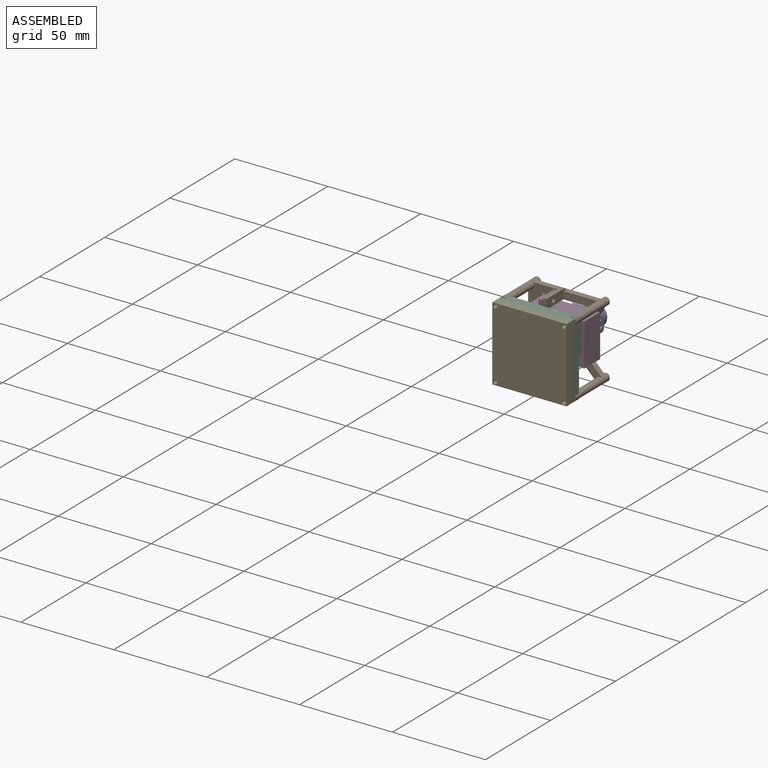
[diagram: assembled view]
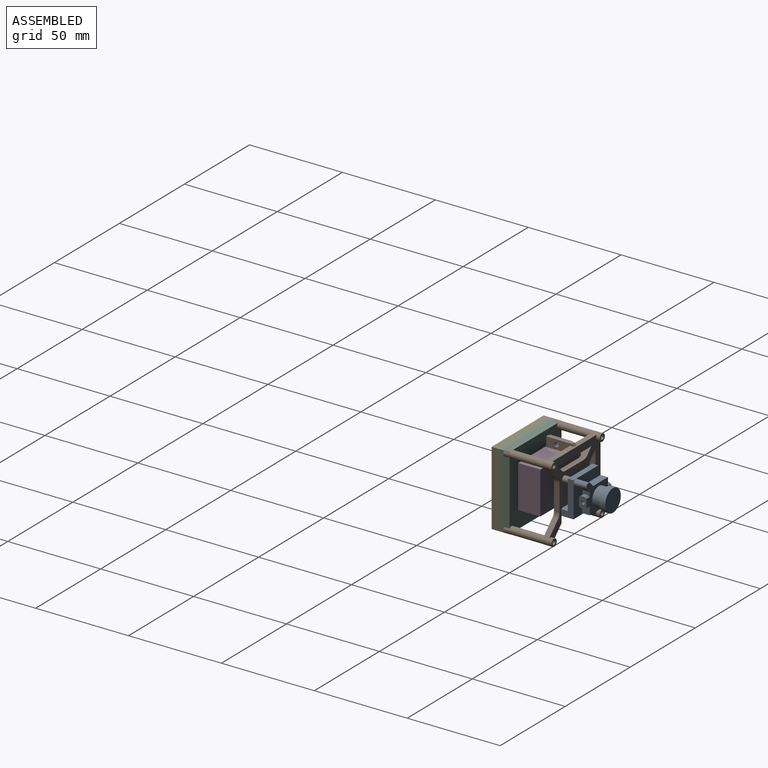
[diagram: assembled view, second angle]
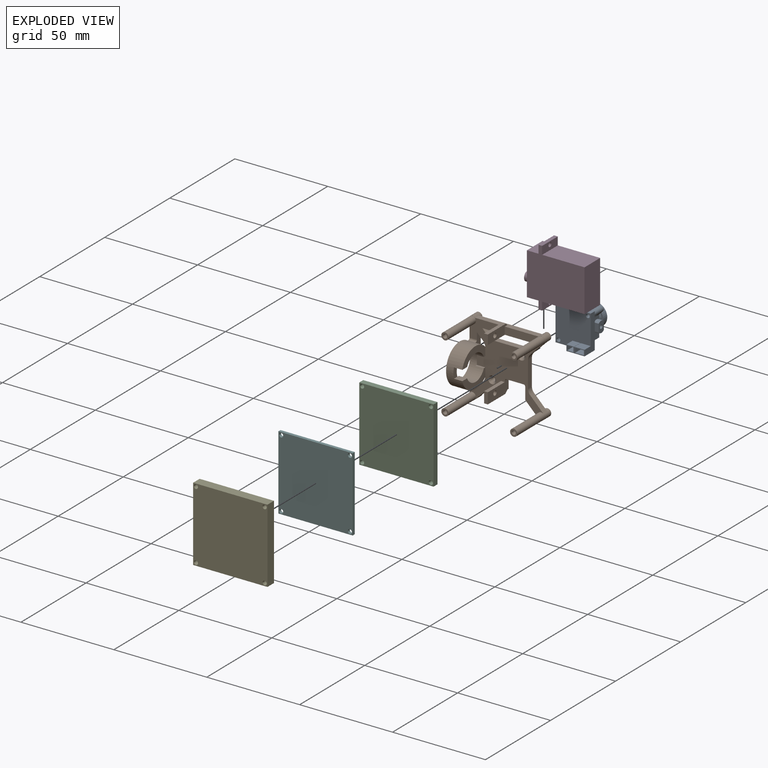
[diagram: exploded view]
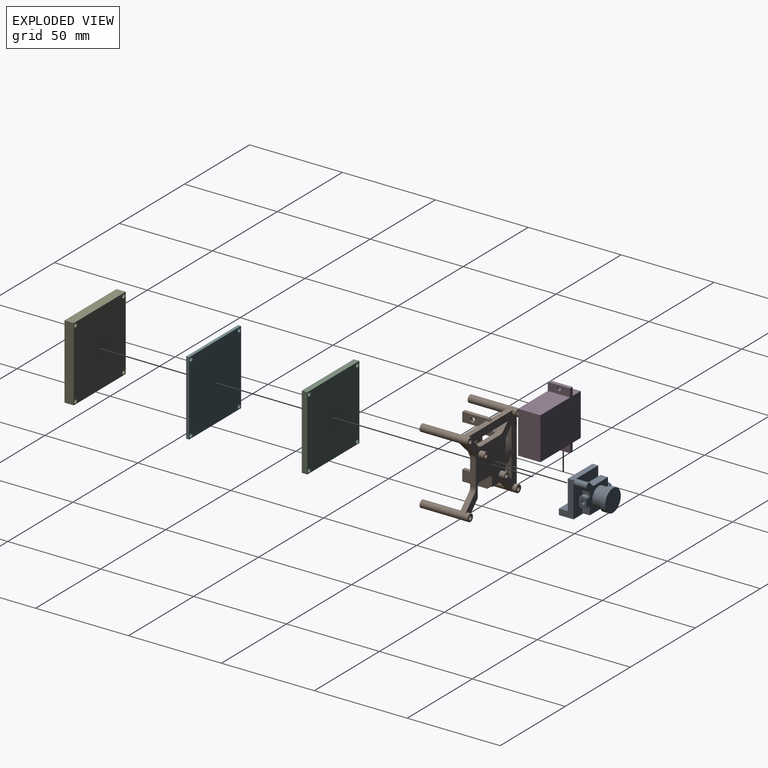
[diagram: exploded view, second angle]
ASSEMBLY  parts=6 mates=5
PART A: 69 faces, bbox 19x22.5x19 mm
  f0: plane 5.5x3.2mm, normal (0,-1,0), area 6.3mm2, adj f1,f2,f3,f4,f5,f6,f7,f8
  f1: plane 19x7.85mm, normal (0,0,-1), area 105mm2, adj f0,f2,f4,f10,f11,f12,f13,f20
  f2: plane 19x7.85mm, normal (1,0,0), area 74.1mm2, adj f0,f1,f3,f10,f21,f22,f23,f65
  f3: plane 5.5x4.75mm, normal (0,0,1), area 26.1mm2, adj f0,f2,f4,f10
  f4: plane 4.75x3.2mm, normal (-1,0,0), area 15.2mm2, adj f0,f1,f3,f10
  f5: plane 4.75x2.4mm, normal (1,0,0), area 11.4mm2, adj f0,f6,f8,f9
  f6: plane 4.75x4.7mm, normal (0,0,1), area 22.3mm2, adj f0,f5,f7,f9
  f7: plane 4.75x2.4mm, normal (-1,0,0), area 11.4mm2, adj f0,f6,f8,f9
  f8: plane 4.75x4.7mm, normal (0,0,-1), area 22.3mm2, adj f0,f5,f7,f9
  f9: plane 4.7x2.4mm, normal (0,-1,0), area 11.3mm2, adj f5,f6,f7,f8
  f10: plane 19x19mm, normal (0,-1,0), area 323.7mm2, adj f1,f2,f3,f4,f12,f13,f14,f23
  f11: plane 4.2x3.2mm, normal (0,-1,0), area 5.3mm2, adj f1,f12,f13,f14,f15,f16,f17,f18
  f12: plane 4.75x3.2mm, normal (-1,0,0), area 15.2mm2, adj f1,f10,f11,f14
  f13: plane 4.75x3.2mm, normal (1,0,0), area 15.2mm2, adj f1,f10,f11,f14
  f14: plane 4.75x4.2mm, normal (0,0,1), area 19.9mm2, adj f10,f11,f12,f13
  f15: plane 4.75x3.4mm, normal (0,0,-1), area 16.1mm2, adj f11,f16,f18,f19
  f16: plane 4.75x2.4mm, normal (1,0,0), area 11.4mm2, adj f11,f15,f17,f19
  f17: plane 4.75x3.4mm, normal (0,0,1), area 16.1mm2, adj f11,f16,f18,f19
  f18: plane 4.75x2.4mm, normal (-1,0,0), area 11.4mm2, adj f11,f15,f17,f19
  f19: plane 3.4x2.4mm, normal (0,-1,0), area 8.2mm2, adj f15,f16,f17,f18
  f20: plane 1.4x1.4mm, normal (0,1,0), area 0.5mm2, adj f1,f24,f57
  f21: plane 1.4x1.4mm, normal (0,1,0), area 0.5mm2, adj f2,f23,f53
  f22: plane 19x19mm, normal (0,1,0), area 342.8mm2, adj f1,f2,f23,f24,f53,f57
  f23: plane 19x3.1mm, normal (0,0,1), area 58.9mm2, adj f2,f10,f21,f22,f24,f64
  f24: plane 19x3.1mm, normal (-1,0,0), area 58.9mm2, adj f1,f10,f20,f22,f23,f56
  f25: cylinder r=1mm len=8.1mm, axis (0,1,0), area 50.9mm2, adj f10,f68
  f26: cylinder r=1mm len=8.1mm, axis (0,1,0), area 50.9mm2, adj f10,f67
  f27: plane 2x2mm, normal (1,0,0), area 3.1mm2, adj f31
  f28: plane 6x4mm, normal (1,0,0), area 18.9mm2, adj f29,f30,f31,f32,f33,f34,f35,f46
  f29: cylinder r=0.2mm len=2.5mm, axis (-1,0,0), area 0.4mm2, adj f28,f32,f46,f51
  f30: cylinder r=0.2mm len=2.5mm, axis (-1,0,0), area 0.4mm2, adj f28,f33,f46,f60
  f31: cylinder r=1mm len=2.5mm, axis (-1,0,0), area 15.7mm2, adj f27,f28
  f32: cylinder r=3mm len=3.86mm, axis (-1,0,0), area 10.5mm2, adj f28,f29,f35,f51
  f33: cylinder r=3mm len=3.86mm, axis (-1,0,0), area 10.5mm2, adj f28,f30,f34,f60
  f34: cylinder r=0.2mm len=2.5mm, axis (-1,0,0), area 0.4mm2, adj f28,f33,f58,f60
  f35: cylinder r=0.2mm len=2.5mm, axis (-1,0,0), area 0.4mm2, adj f28,f32,f51,f58
  f36: plane 2x2mm, normal (-1,0,0), area 3.1mm2, adj f37
  f37: cylinder r=1mm len=2.5mm, axis (-1,0,0), area 15.7mm2, adj f36,f38
  f38: plane 6x4mm, normal (-1,0,0), area 18.9mm2, adj f37,f39,f40,f41,f42,f43,f44,f46
  f39: cylinder r=0.2mm len=2.5mm, axis (-1,0,0), area 0.4mm2, adj f38,f44,f47,f58
  f40: cylinder r=0.2mm len=2.5mm, axis (-1,0,0), area 0.4mm2, adj f38,f41,f58,f59
  f41: cylinder r=3mm len=3.86mm, axis (-1,0,0), area 10.5mm2, adj f38,f40,f42,f59
  f42: cylinder r=0.2mm len=2.5mm, axis (-1,0,0), area 0.4mm2, adj f38,f41,f46,f59
  f43: cylinder r=0.2mm len=2.5mm, axis (-1,0,0), area 0.4mm2, adj f38,f44,f46,f47
  f44: cylinder r=3mm len=3.86mm, axis (-1,0,0), area 10.5mm2, adj f38,f39,f43,f47
  f45: cylinder r=5.06mm len=10.12mm, axis (0,-1,0), area 143.1mm2, adj f46,f61
  f46: plane 19.03x19.03mm, normal (0,1,0), area 150.5mm2, adj f28,f29,f30,f38,f42,f43,f45,f47
  f47: plane 4.48x4mm, normal (-1,0,0), area 15.5mm2, adj f39,f43,f44,f46,f55,f58
  f48: plane 4x2.03mm, normal (-0.71,0,0.71), area 11.5mm2, adj f46,f57,f58,f59
  f49: plane 4x2.41mm, normal (0.71,0,-0.71), area 13.6mm2, adj f46,f50,f57,f58
  f50: plane 11.29x4mm, normal (0,0,-1), area 45.2mm2, adj f46,f49,f58,f60
  f51: plane 4x2.52mm, normal (1,0,0), area 7.6mm2, adj f29,f32,f35,f46,f52,f58
  f52: plane 4x2.03mm, normal (0.71,0,-0.71), area 11.5mm2, adj f46,f51,f53,f58
  f53: cylinder r=1.65mm len=7mm, axis (0,-1,0), area 51.8mm2, adj f21,f22,f46,f52,f54,f58,f64,f65
  f54: plane 4x2.41mm, normal (-0.71,0,0.71), area 13.6mm2, adj f46,f53,f55,f58
  f55: plane 11.29x4mm, normal (0,0,1), area 45.2mm2, adj f46,f47,f54,f58
  f56: plane 0.47x0.02mm, normal (0,-1,0), area 0mm2, adj f24,f57
  f57: cylinder r=1.65mm len=7mm, axis (0,-1,0), area 51.8mm2, adj f20,f22,f46,f48,f49,f56,f58,f66
  f58: plane 19x18.07mm, normal (0,-1,0), area 213.8mm2, adj f28,f34,f35,f38,f39,f40,f47,f48
  f59: plane 4x2.52mm, normal (-1,0,0), area 7.6mm2, adj f40,f41,f42,f46,f48,f58
  f60: plane 4.48x4mm, normal (1,0,0), area 15.5mm2, adj f30,f33,f34,f46,f50,f58
  f61: plane 12x12mm, normal (0,-1,0), area 32.7mm2, adj f45,f63
  f62: plane 12x12mm, normal (0,1,0), area 113.1mm2, adj f63
  f63: cylinder r=6mm len=12mm, axis (0,-1,0), area 116.9mm2, adj f61,f62
  f64: plane 0.47x0.02mm, normal (0,-1,0), area 0mm2, adj f23,f53
  f65: plane 0.47x0.02mm, normal (0,-1,0), area 0mm2, adj f2,f53
  f66: plane 0.47x0.02mm, normal (0,-1,0), area 0mm2, adj f1,f57
  f67: plane 2x2mm, normal (0,-1,0), area 3.1mm2, adj f26
  f68: plane 2x2mm, normal (0,-1,0), area 3.1mm2, adj f25
PART B: 88 faces, bbox 41x27x41.5 mm
  f0: plane 17.63x7.75mm, normal (1,0,0), area 69.4mm2, adj f1,f7,f67,f76,f78
  f1: cylinder r=7mm len=12.87mm, axis (-1,0,0), area 73.5mm2, adj f0,f70,f76,f78
  f2: plane 13.17x4.57mm, normal (1,0,0), area 25.3mm2, adj f7,f9,f15,f67,f74
  f3: cylinder r=4mm len=3mm, axis (0,1,0), area 9.4mm2, adj f5,f7,f9,f14,f67
  f4: plane 7.01x2.69mm, normal (-1,0,0), area 5.9mm2, adj f6,f9,f67
  f5: plane 7.01x2.69mm, normal (-1,0,0), area 5.9mm2, adj f3,f9,f67
  f6: cylinder r=4mm len=3mm, axis (0,1,0), area 9.4mm2, adj f4,f7,f9,f15,f67
  f7: plane 41x41mm, normal (0,-1,0), area 763.4mm2, adj f0,f2,f3,f6,f8,f10,f11,f12
  f8: plane 15x5.9mm, normal (-1,0,0), area 73.7mm2, adj f7,f19,f49,f50,f51,f52,f60
  f9: plane 39.91x39.83mm, normal (0,1,0), area 837.4mm2, adj f2,f3,f4,f5,f6,f10,f11,f12
  f10: plane 14.03x3mm, normal (0,0,1), area 42.1mm2, adj f7,f9,f11,f34
  f11: cylinder r=4mm len=3mm, axis (0,1,0), area 9.4mm2, adj f7,f9,f10,f12
  f12: plane 3.23x3.23mm, normal (0.71,0,0.71), area 13.7mm2, adj f7,f9,f11,f57
  f13: cylinder r=2mm len=5mm, axis (0,1,0), area 44mm2, adj f7,f9,f43,f59,f64
  f14: plane 3.33x3.33mm, normal (-0.71,0,-0.71), area 14.1mm2, adj f3,f7,f9,f65
  f15: plane 3.33x3.33mm, normal (-0.71,0,0.71), area 14.1mm2, adj f2,f6,f7,f9
  f16: cylinder r=2mm len=5mm, axis (0,1,0), area 44mm2, adj f7,f9,f17,f42,f66
  f17: plane 7.24x7.24mm, normal (0.71,0,-0.71), area 30.7mm2, adj f7,f9,f16,f18
  f18: cylinder r=4mm len=3mm, axis (0,1,0), area 9.4mm2, adj f7,f9,f17,f19
  f19: plane 6.01x3mm, normal (0,0,-1), area 14mm2, adj f7,f8,f9,f18,f44,f60
  f20: plane 7.09x7.09mm, normal (-0.71,0,-0.71), area 30.1mm2, adj f7,f9,f21,f45
  f21: cylinder r=2mm len=5mm, axis (0,1,0), area 44mm2, adj f7,f9,f20,f22,f41
  f22: plane 7.24x7.24mm, normal (0.71,0,0.71), area 30.7mm2, adj f7,f9,f21,f23
  f23: cylinder r=4mm len=3mm, axis (0,1,0), area 9.4mm2, adj f7,f9,f22,f24
  f24: plane 14.03x3mm, normal (1,0,0), area 42.1mm2, adj f7,f9,f23,f25
  f25: cylinder r=4mm len=3mm, axis (0,1,0), area 9.4mm2, adj f7,f9,f24,f26
  f26: plane 7.24x7.24mm, normal (0.71,0,-0.71), area 30.7mm2, adj f7,f9,f25,f27
  f27: cylinder r=2mm len=5mm, axis (0,1,0), area 44mm2, adj f7,f9,f26,f40,f59
  f28: plane 3.23x3.23mm, normal (-0.71,0,0.71), area 13.7mm2, adj f7,f9,f34,f57
  f29: cylinder r=1.1mm len=5mm, axis (0,1,0), area 34.6mm2, adj f37,f63
  f30: cylinder r=1.1mm len=26mm, axis (0,1,0), area 179.7mm2, adj f40,f85
  f31: cylinder r=1.1mm len=26mm, axis (0,1,0), area 179.7mm2, adj f41,f83
  f32: cylinder r=1.1mm len=26mm, axis (0,1,0), area 179.7mm2, adj f42,f81
  f33: cylinder r=1.1mm len=26mm, axis (0,1,0), area 179.7mm2, adj f43,f87
  f34: cylinder r=4mm len=3mm, axis (0,1,0), area 9.4mm2, adj f7,f9,f10,f28
  f35: cylinder r=1.1mm len=5mm, axis (0,1,0), area 34.6mm2, adj f39,f62
  f36: cylinder r=1.75mm len=3.5mm, axis (0,-1,0), area 33mm2, adj f9,f37
  f37: plane 3.5x3.5mm, normal (0,1,0), area 5.8mm2, adj f29,f36
  f38: cylinder r=1.75mm len=3.5mm, axis (0,-1,0), area 33mm2, adj f9,f39
  f39: plane 3.5x3.5mm, normal (0,1,0), area 5.8mm2, adj f35,f38
  f40: plane 4x4mm, normal (0,1,0), area 8.8mm2, adj f27,f30
  f41: plane 4x4mm, normal (0,1,0), area 8.8mm2, adj f21,f31
  f42: plane 4x4mm, normal (0,1,0), area 8.8mm2, adj f16,f32
  f43: plane 4x4mm, normal (0,1,0), area 8.8mm2, adj f13,f33
  f44: plane 16x6.5mm, normal (1,0,0), area 88.7mm2, adj f7,f9,f19,f48,f49,f50,f51,f52
  f45: plane 6.33x3mm, normal (-1,0,0), area 19mm2, adj f7,f9,f20,f46
  f46: cylinder r=1mm len=3mm, axis (0,-1,0), area 4.7mm2, adj f7,f9,f45,f47
  f47: plane 9x3mm, normal (0,0,-1), area 27mm2, adj f7,f9,f46,f48
  f48: cylinder r=1mm len=3mm, axis (0,-1,0), area 4.7mm2, adj f7,f9,f44,f47
  f49: plane 13.5x2mm, normal (0,0,-1), area 27mm2, adj f8,f44,f50,f60
  f50: plane 5.9x2mm, normal (0,-1,0), area 11.8mm2, adj f8,f44,f49,f51
  f51: plane 13x2mm, normal (0,0,1), area 26mm2, adj f7,f8,f44,f50
  f52: cylinder r=1.25mm len=2.5mm, axis (-1,0,0), area 15.7mm2, adj f8,f44
  f53: plane 13.91x2mm, normal (0,0,1), area 27.8mm2, adj f54,f55,f56,f61
  f54: plane 5.1x2mm, normal (0,-1,0), area 10.2mm2, adj f53,f55,f56,f57
  f55: plane 15x5.1mm, normal (-1,0,0), area 63mm2, adj f7,f53,f54,f57,f58,f59,f61
  f56: plane 15x5.1mm, normal (1,0,0), area 63mm2, adj f7,f53,f54,f57,f58,f59,f61
  f57: plane 26.14x16mm, normal (0,0,-1), area 104.4mm2, adj f7,f9,f12,f28,f54,f55,f56
  f58: cylinder r=1.25mm len=2.5mm, axis (-1,0,0), area 15.7mm2, adj f55,f56
  f59: plane 34.17x3mm, normal (0,0,1), area 98.5mm2, adj f7,f9,f13,f27,f55,f56,f61
  f60: plane 2x1.5mm, normal (0,0.71,-0.71), area 4.2mm2, adj f8,f19,f44,f49
  f61: plane 2x1.09mm, normal (0,0.71,0.71), area 3.1mm2, adj f53,f55,f56,f59
  f62: cone r=2.1mm half-angle=45deg, axis (0,-1,0), area 14.2mm2, adj f7,f35
  f63: cone r=1.1mm half-angle=45deg, axis (0,-1,0), area 14.2mm2, adj f7,f29
  f64: plane 3x0.09mm, normal (0,0,1), area 0.3mm2, adj f7,f9,f13,f69
  f65: plane 13.17x4.57mm, normal (1,0,0), area 25.3mm2, adj f7,f9,f14,f67,f73
  f66: plane 3x0.09mm, normal (0,0,-1), area 0.3mm2, adj f7,f9,f16,f69
  f67: cylinder r=10.5mm len=21mm, axis (-1,0,0), area 454.2mm2, adj f0,f2,f3,f4,f5,f6,f7,f65
  f68: cylinder r=8mm len=16mm, axis (-1,0,0), area 201.1mm2, adj f69,f70,f79
  f69: plane 34.17x21mm, normal (-1,0,0), area 219.3mm2, adj f7,f9,f64,f66,f67,f68,f73,f74
  f70: plane 16x15.51mm, normal (-1,0,0), area 37.7mm2, adj f1,f7,f68,f72,f75,f76,f77,f78
  f71: plane 17.63x7.75mm, normal (1,0,0), area 69.4mm2, adj f7,f67,f72,f75,f77
  f72: cylinder r=7mm len=12.87mm, axis (-1,0,0), area 73.5mm2, adj f70,f71,f75,f77
  f73: cylinder r=1mm len=4mm, axis (-1,0,0), area 8.7mm2, adj f7,f65,f67,f69
  f74: cylinder r=1mm len=4mm, axis (-1,0,0), area 8.7mm2, adj f2,f7,f67,f69
  f75: plane 4.5x1.06mm, normal (0,0,1), area 4.8mm2, adj f7,f70,f71,f72
  f76: plane 4.5x1.06mm, normal (0,0,-1), area 4.8mm2, adj f0,f1,f7,f70
  f77: plane 4.5x3.7mm, normal (0,0,1), area 16.6mm2, adj f67,f70,f71,f72,f79
  f78: plane 4.5x3.7mm, normal (0,0,-1), area 16.6mm2, adj f0,f1,f67,f70,f79
  f79: plane 5.5x2.99mm, normal (1,0,0), area 14mm2, adj f67,f68,f77,f78
  f80: cylinder r=1.95mm len=21mm, axis (0,1,0), area 257.3mm2, adj f7,f81
  f81: plane 3.9x3.9mm, normal (0,-1,0), area 8.1mm2, adj f32,f80
  f82: cylinder r=1.95mm len=21mm, axis (0,1,0), area 257.3mm2, adj f7,f83
  f83: plane 3.9x3.9mm, normal (0,-1,0), area 8.1mm2, adj f31,f82
  f84: cylinder r=1.95mm len=21mm, axis (0,1,0), area 257.3mm2, adj f7,f85
  f85: plane 3.9x3.9mm, normal (0,-1,0), area 8.1mm2, adj f30,f84
  f86: cylinder r=1.95mm len=21mm, axis (0,1,0), area 257.3mm2, adj f7,f87
  f87: plane 3.9x3.9mm, normal (0,-1,0), area 8.1mm2, adj f33,f86
PART C: 10 faces, bbox 40x3x40 mm
  f0: plane 40x3mm, normal (0,0,-1), area 120mm2, adj f1,f7,f8,f9
  f1: plane 40x3mm, normal (-1,0,0), area 120mm2, adj f0,f2,f8,f9
  f2: plane 40x3mm, normal (0,0,1), area 120mm2, adj f1,f7,f8,f9
  f3: cylinder r=1.1mm len=3mm, axis (0,-1,0), area 20.7mm2, adj f8,f9
  f4: cylinder r=1.1mm len=3mm, axis (0,-1,0), area 20.7mm2, adj f8,f9
  f5: cylinder r=1.1mm len=3mm, axis (0,-1,0), area 20.7mm2, adj f8,f9
  f6: cylinder r=1.1mm len=3mm, axis (0,-1,0), area 20.7mm2, adj f8,f9
  f7: plane 40x3mm, normal (1,0,0), area 120mm2, adj f0,f2,f8,f9
  f8: plane 40x40mm, normal (0,1,0), area 1584.8mm2, adj f0,f1,f2,f3,f4,f5,f6,f7
  f9: plane 40x40mm, normal (0,-1,0), area 1584.8mm2, adj f0,f1,f2,f3,f4,f5,f6,f7
PART D: 18 faces, bbox 31.5x12x35 mm
  f0: plane 22.8x12mm, normal (-1,0,0), area 273.6mm2, adj f1,f11,f12,f13
  f1: plane 22.8x12mm, normal (0,0,-1), area 273.6mm2, adj f0,f2,f12,f13
  f2: plane 22.8x12mm, normal (1,0,0), area 273.6mm2, adj f1,f3,f12,f13
  f3: plane 12x4.35mm, normal (0,0,-1), area 48.4mm2, adj f2,f4,f12,f13,f17
  f4: plane 12x2mm, normal (1,0,0), area 24mm2, adj f3,f5,f12,f13
  f5: plane 12x4.35mm, normal (0,0,1), area 48.4mm2, adj f4,f6,f12,f13,f17
  f6: plane 12x6.2mm, normal (1,0,0), area 74.4mm2, adj f5,f7,f12,f13
  f7: plane 22.8x12mm, normal (0,0,1), area 254mm2, adj f6,f8,f12,f13,f14
  f8: plane 12x6.2mm, normal (-1,0,0), area 74.4mm2, adj f7,f9,f12,f13
  f9: plane 12x4.35mm, normal (0,0,1), area 48.4mm2, adj f8,f10,f12,f13,f16
  f10: plane 12x2mm, normal (-1,0,0), area 24mm2, adj f9,f11,f12,f13
  f11: plane 12x4.35mm, normal (0,0,-1), area 48.4mm2, adj f0,f10,f12,f13,f16
  f12: plane 31.5x31mm, normal (0,-1,0), area 724.2mm2, adj f0,f1,f2,f3,f4,f5,f6,f7
  f13: plane 31.5x31mm, normal (0,1,0), area 724.2mm2, adj f0,f1,f2,f3,f4,f5,f6,f7
  f14: cylinder r=2.5mm len=5mm, axis (0,0,-1), area 62.8mm2, adj f7,f15
  f15: plane 5x5mm, normal (0,0,1), area 19.6mm2, adj f14
  f16: cylinder r=1.1mm len=2.2mm, axis (0,0,1), area 13.8mm2, adj f9,f11
  f17: cylinder r=1.1mm len=2.2mm, axis (0,0,1), area 13.8mm2, adj f3,f5
PART E: 10 faces, bbox 40x5x40 mm
  f0: plane 40x5mm, normal (0,0,-1), area 200mm2, adj f1,f7,f8,f9
  f1: plane 40x5mm, normal (1,0,0), area 200mm2, adj f0,f2,f8,f9
  f2: plane 40x5mm, normal (0,0,1), area 200mm2, adj f1,f7,f8,f9
  f3: cylinder r=1.1mm len=5mm, axis (0,1,0), area 34.6mm2, adj f8,f9
  f4: cylinder r=1.1mm len=5mm, axis (0,1,0), area 34.6mm2, adj f8,f9
  f5: cylinder r=1.1mm len=5mm, axis (0,1,0), area 34.6mm2, adj f8,f9
  f6: cylinder r=1.1mm len=5mm, axis (0,1,0), area 34.6mm2, adj f8,f9
  f7: plane 40x5mm, normal (-1,0,0), area 200mm2, adj f0,f2,f8,f9
  f8: plane 40x40mm, normal (0,-1,0), area 1584.8mm2, adj f0,f1,f2,f3,f4,f5,f6,f7
  f9: plane 40x40mm, normal (0,1,0), area 1584.8mm2, adj f0,f1,f2,f3,f4,f5,f6,f7
PART F: 10 faces, bbox 40x1.6x40 mm
  f0: plane 40x1.6mm, normal (0,0,-1), area 64mm2, adj f1,f7,f8,f9
  f1: plane 40x1.6mm, normal (1,0,0), area 64mm2, adj f0,f2,f8,f9
  f2: plane 40x1.6mm, normal (0,0,1), area 64mm2, adj f1,f7,f8,f9
  f3: cylinder r=1.1mm len=2.2mm, axis (0,1,0), area 11.1mm2, adj f8,f9
  f4: cylinder r=1.1mm len=2.2mm, axis (0,1,0), area 11.1mm2, adj f8,f9
  f5: cylinder r=1.1mm len=2.2mm, axis (0,1,0), area 11.1mm2, adj f8,f9
  f6: cylinder r=1.1mm len=2.2mm, axis (0,1,0), area 11.1mm2, adj f8,f9
  f7: plane 40x1.6mm, normal (-1,0,0), area 64mm2, adj f0,f2,f8,f9
  f8: plane 40x40mm, normal (0,-1,0), area 1584.8mm2, adj f0,f1,f2,f3,f4,f5,f6,f7
  f9: plane 40x40mm, normal (0,1,0), area 1584.8mm2, adj f0,f1,f2,f3,f4,f5,f6,f7
PLACE A t=(0,6.1,0)mm
PLACE B at identity fixed
PLACE C t=(0,-24,0)mm
PLACE D rot(axis=(-0.71,0,0.71),180deg) t=(4.3,-10.5,4.4)mm
PLACE E t=(0,-24,0)mm
PLACE F t=(0,-24,0)mm
MATE fastened F.f3 <-> E.f3  axis (0,-1,0) through (-18.5,-25.6,18.5)mm
MATE fastened F.f3 <-> B.f13  axis (0,1,0) through (-18.5,-24,18.5)mm
MATE fastened D.f17 <-> B.f52  axis (1,0,0) through (-3,-10.5,-9.6)mm
MATE fastened A.f26 <-> B.f29  axis (0,-1,0) through (7.87,3,7.87)mm
MATE fastened B.f13 <-> C.f3  axis (0,-1,0) through (-18.5,-24,18.5)mm
